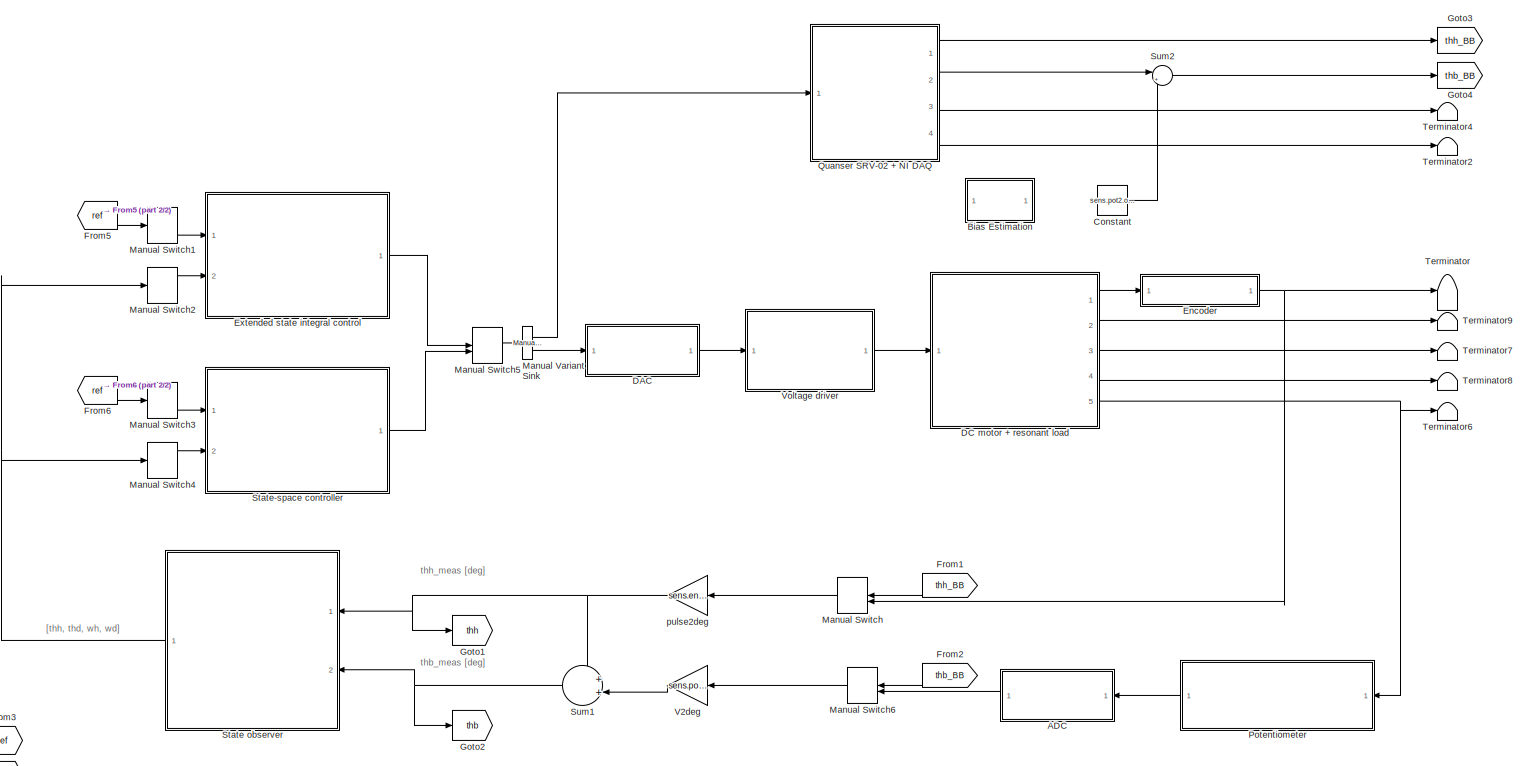
[diagram: root canvas - part 1/2, most of the canvas]
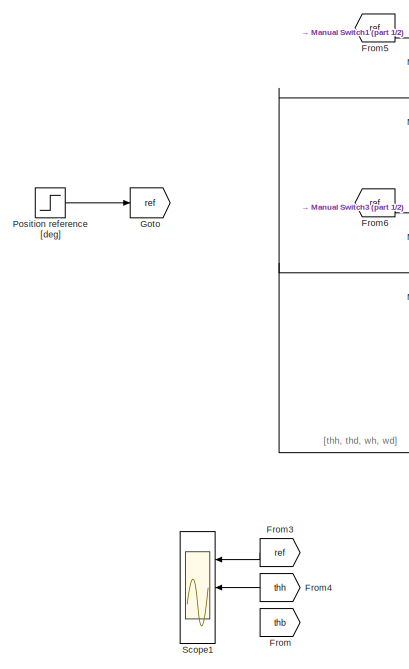
[diagram: root canvas - part 2/2, left side, full height]
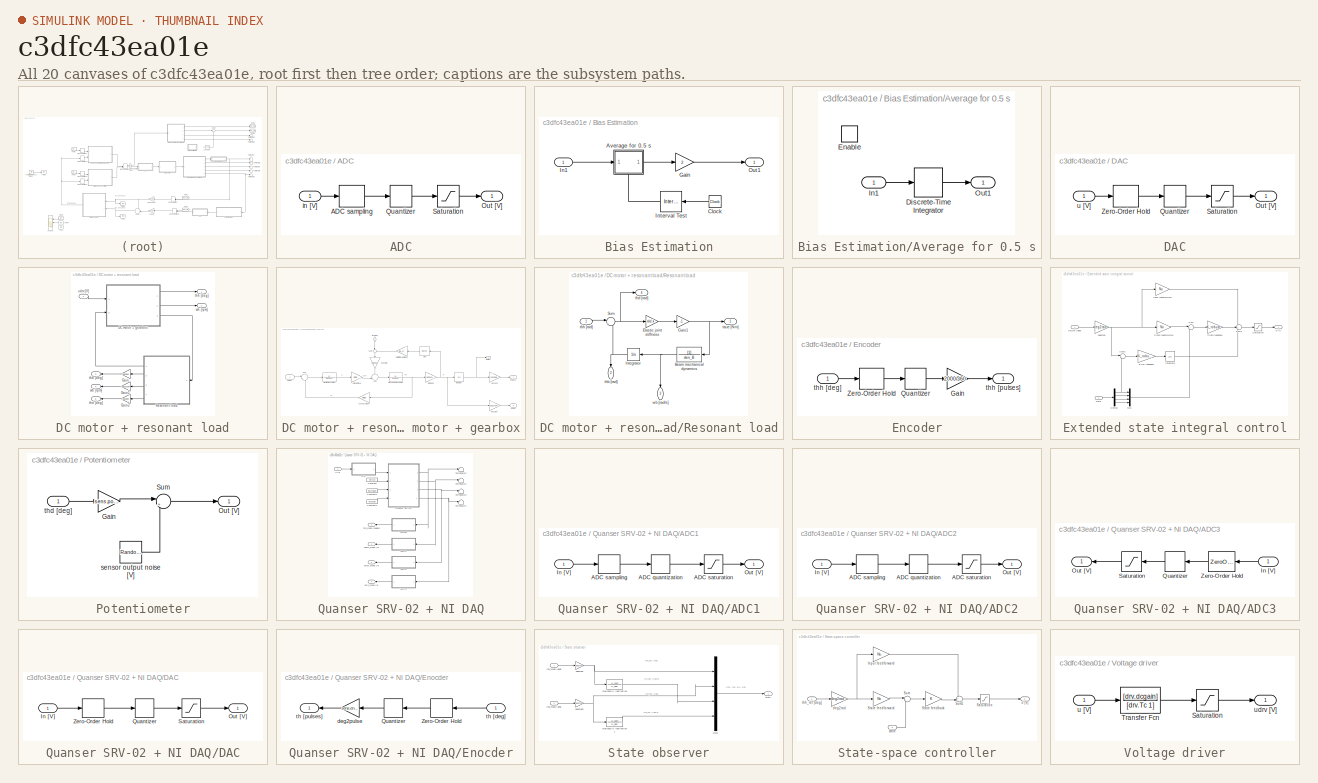
[diagram: thumbnail index - all 20 canvases of the model, root first then tree order]
MODEL slx_c3dfc43ea01e
KIND model
CONFIG AbsTol = auto
CONFIG EnableMultiTasking = off
CONFIG FixedStep = 0.0001
CONFIG MaxStep = auto
CONFIG MinStep = auto
CONFIG RelTol = 1e-3
CONFIG SampleTimeConstraint = Unconstrained
CONFIG SolverName = ode45
CONFIG StartTime = 0.0
CONFIG StopTime = 5
BLOCK [SubSystem] ADC
  Ports = [1, 1]
  RequestExecContextInheritance = off
BLOCK [ZeroOrderHold] ADC/ADC sampling
  SampleTime = Ts
BLOCK [Outport] ADC/Out [V]
BLOCK [Quantizer] ADC/Quantizer
  QuantizationInterval = daq.adc.q
BLOCK [Saturate] ADC/Saturation
  LowerLimit = -daq.adc.fs
  UpperLimit = daq.adc.fs
BLOCK [Inport] ADC/in [V]
BLOCK [SubSystem] Bias Estimation
  Commented = on
  NameLocation = top
  Ports = [1, 1]
  RequestExecContextInheritance = off
BLOCK [SubSystem] Bias Estimation/Average for 0.5 s
  NameLocation = top
  Ports = [1, 1, 1]
  RequestExecContextInheritance = off
BLOCK [DiscreteIntegrator] Bias Estimation/Average for 0.5 s/Discrete-Time Integrator
  ICPrevOutput = DiscIntNeverNeededParam
  ICPrevScaledInput = DiscIntNeverNeededParam
  InitialConditionSetting = Auto
  Ports = [1, 1]
  SampleTime = Ts
BLOCK [EnablePort] Bias Estimation/Average for 0.5 s/Enable
  Ports = []
BLOCK [Inport] Bias Estimation/Average for 0.5 s/In1
BLOCK [Outport] Bias Estimation/Average for 0.5 s/Out1
BLOCK [Clock] Bias Estimation/Clock
  NameLocation = top
BLOCK [Gain] Bias Estimation/Gain
  Gain = 2
BLOCK [Inport] Bias Estimation/In1
BLOCK [Reference] Bias Estimation/Interval Test  REF=simulink/Logic and Bit
Operations/Interval Test
  NameLocation = top
  Ports = [1, 1]
  SourceBlock = simulink/Logic and Bit\nOperations/Interval Test
  SourceProductBaseCode = SL
  SourceType = Interval Test
BLOCK [Outport] Bias Estimation/Out1
BLOCK [Constant] Constant
  Value = sens.pot2.offset
BLOCK [SubSystem] DAC
  Ports = [1, 1]
  RequestExecContextInheritance = off
BLOCK [Outport] DAC/Out [V]
BLOCK [Quantizer] DAC/Quantizer
  QuantizationInterval = 20/(2^16-1)
BLOCK [Saturate] DAC/Saturation
  LowerLimit = -10
  UpperLimit = 10
BLOCK [ZeroOrderHold] DAC/Zero-Order Hold
  SampleTime = Ts
BLOCK [Inport] DAC/u [V]
BLOCK [SubSystem] DC motor + resonant load
  Ports = [1, 5]
  RequestExecContextInheritance = off
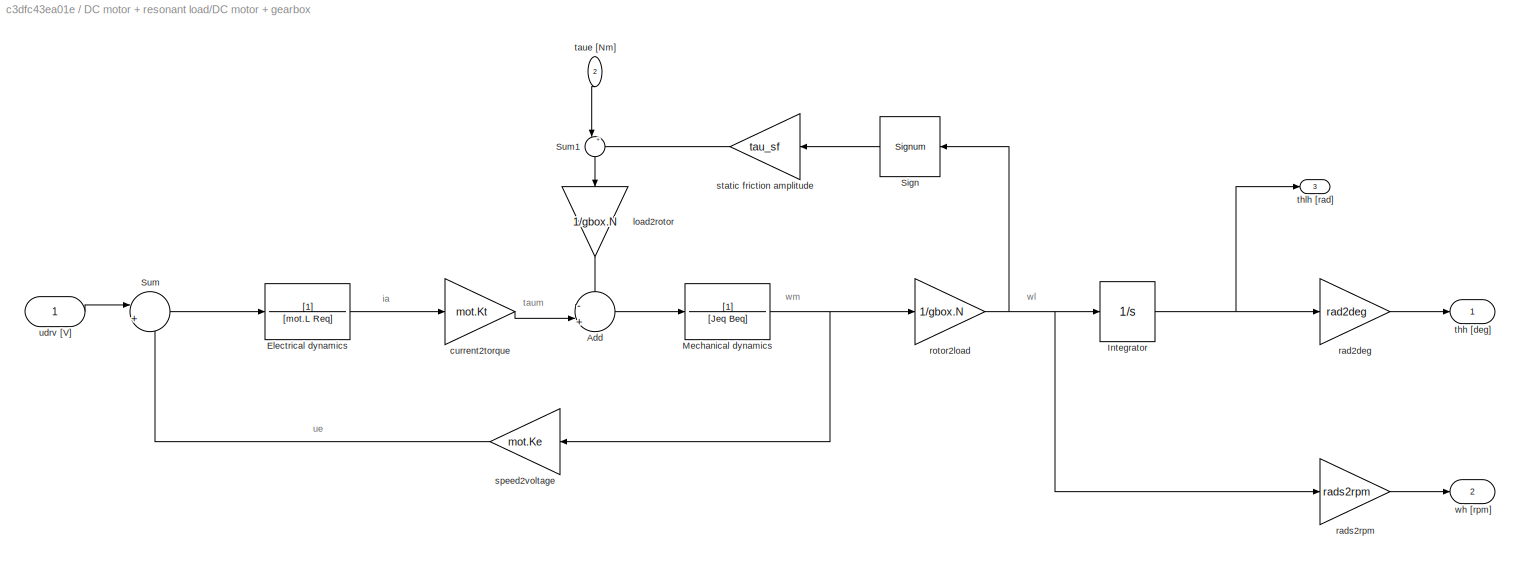
BLOCK [SubSystem] DC motor + resonant load/DC motor + gearbox
  Ports = [2, 3]
  RequestExecContextInheritance = off
BLOCK [Sum] DC motor + resonant load/DC motor + gearbox/Add
  Inputs = -|+||
  Ports = [2, 1]
BLOCK [TransferFcn] DC motor + resonant load/DC motor + gearbox/Electrical dynamics
  Denominator = [mot.L Req]
BLOCK [Integrator] DC motor + resonant load/DC motor + gearbox/Integrator
  Ports = [1, 1]
BLOCK [TransferFcn] DC motor + resonant load/DC motor + gearbox/Mechanical dynamics
  Denominator = [Jeq Beq]
BLOCK [Signum] DC motor + resonant load/DC motor + gearbox/Sign
  ZeroCross = off
BLOCK [Sum] DC motor + resonant load/DC motor + gearbox/Sum
  Inputs = |+-
  Ports = [2, 1]
BLOCK [Sum] DC motor + resonant load/DC motor + gearbox/Sum1
  Inputs = |++
  NameLocation = left
  Ports = [2, 1]
BLOCK [Gain] DC motor + resonant load/DC motor + gearbox/current2torque
  Gain = mot.Kt
BLOCK [Gain] DC motor + resonant load/DC motor + gearbox/load2rotor
  Gain = 1/gbox.N
  NameLocation = left
BLOCK [Gain] DC motor + resonant load/DC motor + gearbox/rad2deg
  Gain = rad2deg
BLOCK [Gain] DC motor + resonant load/DC motor + gearbox/rads2rpm
  Gain = rads2rpm
BLOCK [Gain] DC motor + resonant load/DC motor + gearbox/rotor2load
  Gain = 1/gbox.N
BLOCK [Gain] DC motor + resonant load/DC motor + gearbox/speed2voltage
  Gain = mot.Ke
BLOCK [Gain] DC motor + resonant load/DC motor + gearbox/static friction amplitude
  Gain = tau_sf
  NameLocation = top
BLOCK [Inport] DC motor + resonant load/DC motor + gearbox/taue [Nm]
  NameLocation = left
  Port = 2
BLOCK [Outport] DC motor + resonant load/DC motor + gearbox/thh [deg] 
BLOCK [Outport] DC motor + resonant load/DC motor + gearbox/thlh [rad]
  NameLocation = top
  Port = 3
BLOCK [Inport] DC motor + resonant load/DC motor + gearbox/udrv [V]
BLOCK [Outport] DC motor + resonant load/DC motor + gearbox/wh [rpm]
  Port = 2
BLOCK [Gain] DC motor + resonant load/Gain
  Gain = rad2deg
BLOCK [Gain] DC motor + resonant load/Gain1
  Gain = rads2rpm
BLOCK [Gain] DC motor + resonant load/Gain2
  Gain = rad2deg
BLOCK [SubSystem] DC motor + resonant load/Resonant load
  Ports = [1, 4]
  RequestExecContextInheritance = off
BLOCK [TransferFcn] DC motor + resonant load/Resonant load/Beam mechanical dynamics
  Denominator = den_B
BLOCK [Gain] DC motor + resonant load/Resonant load/Elastic joint stiffness
  Gain = mld.k
BLOCK [Gain] DC motor + resonant load/Resonant load/Gain1
  Gain = -1
BLOCK [Integrator] DC motor + resonant load/Resonant load/Integrator
  Ports = [1, 1]
BLOCK [Sum] DC motor + resonant load/Resonant load/Sum
  Inputs = |-+
  Ports = [2, 1]
BLOCK [Outport] DC motor + resonant load/Resonant load/taue [Nm]
BLOCK [Outport] DC motor + resonant load/Resonant load/thb [rad]
  NameLocation = left
  Port = 2
BLOCK [Outport] DC motor + resonant load/Resonant load/thd [rad]
  Port = 4
BLOCK [Inport] DC motor + resonant load/Resonant load/thh [rad]
BLOCK [Outport] DC motor + resonant load/Resonant load/wb [rad//s]
  NameLocation = left
  Port = 3
BLOCK [Outport] DC motor + resonant load/thb [deg]
  Port = 3
BLOCK [Outport] DC motor + resonant load/thd [deg]
  Port = 5
BLOCK [Outport] DC motor + resonant load/thh [deg] 
BLOCK [Inport] DC motor + resonant load/udrv [V]
BLOCK [Outport] DC motor + resonant load/wb [rpm]
  Port = 4
BLOCK [Outport] DC motor + resonant load/wh [rpm]
  Port = 2
BLOCK [SubSystem] Encoder
  Ports = [1, 1]
  RequestExecContextInheritance = off
BLOCK [Gain] Encoder/Gain
  Gain = 2000/360
BLOCK [Quantizer] Encoder/Quantizer
  QuantizationInterval = 360/(500*4)
BLOCK [ZeroOrderHold] Encoder/Zero-Order Hold
  SampleTime = Ts
BLOCK [Inport] Encoder/thh [deg] 
BLOCK [Outport] Encoder/thh [pulses]
BLOCK [SubSystem] Extended state integral control
  Ports = [2, 1]
  RequestExecContextInheritance = off
BLOCK [Demux] Extended state integral control/Demux
  Ports = [1, 4]
BLOCK [Gain] Extended state integral control/Error feedback
  Gain = Ki_robust
BLOCK [Gain] Extended state integral control/Input feedforward
  Gain = Nu
BLOCK [Integrator] Extended state integral control/Integrator
  Ports = [1, 1]
BLOCK [Mux] Extended state integral control/Mux
  DisplayOption = bar
  Ports = [4, 1]
BLOCK [Saturate] Extended state integral control/Saturation
  LowerLimit = -12
  UpperLimit = 12
BLOCK [Gain] Extended state integral control/State feedback
  Gain = K_robust
  Multiplication = Matrix(K*u) (u vector)
BLOCK [Gain] Extended state integral control/State feedforward
  Gain = Nx
BLOCK [Sum] Extended state integral control/Sum
  Inputs = |+-
  Ports = [2, 1]
BLOCK [Sum] Extended state integral control/Sum1
  Inputs = +++
  Ports = [3, 1]
BLOCK [Sum] Extended state integral control/Sum2
  Inputs = |+-
  Ports = [2, 1]
BLOCK [Gain] Extended state integral control/deg2rad
  Gain = deg2rad
BLOCK [Inport] Extended state integral control/state
  Port = 2
BLOCK [Inport] Extended state integral control/thh_ref [deg]
BLOCK [Outport] Extended state integral control/u [V]
BLOCK [From] From
  Commented = on
  GotoTag = thb
BLOCK [From] From1
  GotoTag = thh_BB
BLOCK [From] From2
  GotoTag = thb_BB
BLOCK [From] From3
  GotoTag = ref
BLOCK [From] From4
  GotoTag = thh
BLOCK [From] From5
  GotoTag = ref
BLOCK [From] From6
  GotoTag = ref
BLOCK [Goto] Goto
  GotoTag = ref
BLOCK [Goto] Goto1
  GotoTag = thh
BLOCK [Goto] Goto2
  Commented = on
  GotoTag = thb
BLOCK [Goto] Goto3
  GotoTag = thh_BB
BLOCK [Goto] Goto4
  GotoTag = thb_BB
BLOCK [ManualSwitch] Manual Switch
  NameLocation = top
BLOCK [ManualSwitch] Manual Switch1
  NameLocation = top
BLOCK [ManualSwitch] Manual Switch2
  NameLocation = top
BLOCK [ManualSwitch] Manual Switch3
  CurrentSetting = 0
  NameLocation = top
BLOCK [ManualSwitch] Manual Switch4
  CurrentSetting = 0
  NameLocation = top
BLOCK [ManualSwitch] Manual Switch5
  NameLocation = top
BLOCK [ManualSwitch] Manual Switch6
  NameLocation = top
BLOCK [Reference] Manual Variant Sink  REF=simulink/Signal
Routing/Manual
Variant Sink
  Ports = [1, 2]
  SourceBlock = simulink/Signal\nRouting/Manual\nVariant Sink
  SourceProductBaseCode = SL
  SourceType = ManualVariantSink
BLOCK [Step] Position reference [deg]
  After = 50
  SampleTime = 0
BLOCK [SubSystem] Potentiometer
  Ports = [1, 1]
  RequestExecContextInheritance = off
BLOCK [Gain] Potentiometer/Gain
  Gain = sens.pot2.deg2V
BLOCK [Outport] Potentiometer/Out [V]
BLOCK [Sum] Potentiometer/Sum
  Inputs = |++
  Ports = [2, 1]
BLOCK [RandomNumber] Potentiometer/sensor output noise [V]
  SampleTime = Ts
  Variance = sens.pot2.noise.var
BLOCK [Inport] Potentiometer/thd [deg]
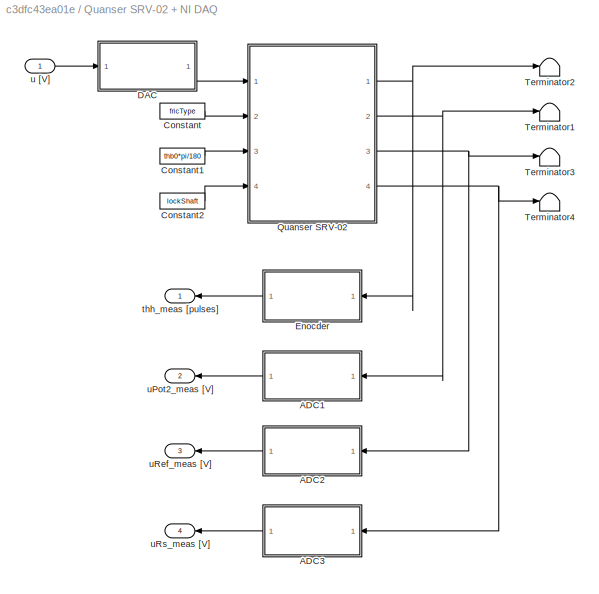
BLOCK [SubSystem] Quanser SRV-02 + NI DAQ
  Ports = [1, 4]
  RequestExecContextInheritance = off
BLOCK [SubSystem] Quanser SRV-02 + NI DAQ/ADC1
  Ports = [1, 1]
  RequestExecContextInheritance = off
BLOCK [Quantizer] Quanser SRV-02 + NI DAQ/ADC1/ADC quantization
  QuantizationInterval = daq.adc.q
BLOCK [ZeroOrderHold] Quanser SRV-02 + NI DAQ/ADC1/ADC sampling
  SampleTime = Ts
BLOCK [Saturate] Quanser SRV-02 + NI DAQ/ADC1/ADC saturation
  LowerLimit = -daq.adc.fs
  UpperLimit = daq.adc.fs
BLOCK [Inport] Quanser SRV-02 + NI DAQ/ADC1/In [V]
BLOCK [Outport] Quanser SRV-02 + NI DAQ/ADC1/Out [V]
BLOCK [SubSystem] Quanser SRV-02 + NI DAQ/ADC2
  Ports = [1, 1]
  RequestExecContextInheritance = off
BLOCK [Quantizer] Quanser SRV-02 + NI DAQ/ADC2/ADC quantization
  QuantizationInterval = daq.adc.q
BLOCK [ZeroOrderHold] Quanser SRV-02 + NI DAQ/ADC2/ADC sampling
  SampleTime = Ts
BLOCK [Saturate] Quanser SRV-02 + NI DAQ/ADC2/ADC saturation
  LowerLimit = -daq.adc.fs
  UpperLimit = daq.adc.fs
BLOCK [Inport] Quanser SRV-02 + NI DAQ/ADC2/In [V]
BLOCK [Outport] Quanser SRV-02 + NI DAQ/ADC2/Out [V]
BLOCK [SubSystem] Quanser SRV-02 + NI DAQ/ADC3
  Ports = [1, 1]
  RequestExecContextInheritance = off
BLOCK [Inport] Quanser SRV-02 + NI DAQ/ADC3/In [V]
BLOCK [Outport] Quanser SRV-02 + NI DAQ/ADC3/Out [V]
BLOCK [Quantizer] Quanser SRV-02 + NI DAQ/ADC3/Quantizer
  QuantizationInterval = daq.adc.q
BLOCK [Saturate] Quanser SRV-02 + NI DAQ/ADC3/Saturation
  LowerLimit = -daq.adc.fs
  UpperLimit = daq.adc.fs
BLOCK [ZeroOrderHold] Quanser SRV-02 + NI DAQ/ADC3/Zero-Order Hold
  SampleTime = Ts
BLOCK [Constant] Quanser SRV-02 + NI DAQ/Constant
  Value = fricType
BLOCK [Constant] Quanser SRV-02 + NI DAQ/Constant1
  SampleTime = Inf
  Value = thb0*pi/180
BLOCK [Constant] Quanser SRV-02 + NI DAQ/Constant2
  SampleTime = Inf
  Value = lockShaft
BLOCK [SubSystem] Quanser SRV-02 + NI DAQ/DAC
  Ports = [1, 1]
  RequestExecContextInheritance = off
BLOCK [Inport] Quanser SRV-02 + NI DAQ/DAC/In [V]
BLOCK [Outport] Quanser SRV-02 + NI DAQ/DAC/Out [V]
BLOCK [Quantizer] Quanser SRV-02 + NI DAQ/DAC/Quantizer
  QuantizationInterval = daq.dac.q
BLOCK [Saturate] Quanser SRV-02 + NI DAQ/DAC/Saturation
  LowerLimit = -daq.dac.fs
  UpperLimit = daq.dac.fs
BLOCK [ZeroOrderHold] Quanser SRV-02 + NI DAQ/DAC/Zero-Order Hold
  SampleTime = Ts
BLOCK [SubSystem] Quanser SRV-02 + NI DAQ/Enocder
  Ports = [1, 1]
  RequestExecContextInheritance = off
BLOCK [Quantizer] Quanser SRV-02 + NI DAQ/Enocder/Quantizer
  QuantizationInterval = sens.enc.pulse2deg
BLOCK [ZeroOrderHold] Quanser SRV-02 + NI DAQ/Enocder/Zero-Order Hold
  SampleTime = Ts
BLOCK [Gain] Quanser SRV-02 + NI DAQ/Enocder/deg2pulse
  Gain = sens.enc.deg2pulse
BLOCK [Inport] Quanser SRV-02 + NI DAQ/Enocder/th [deg]
BLOCK [Outport] Quanser SRV-02 + NI DAQ/Enocder/th [pulses]
BLOCK [ModelReference] Quanser SRV-02 + NI DAQ/Quanser SRV-02
  CopyOfModelProtected = on
  ModelNameDialog = SRV02RL_win64.slxp
  ModelReferenceVersion = 1.76
  Ports = [4, 4]
BLOCK [Terminator] Quanser SRV-02 + NI DAQ/Terminator1
BLOCK [Terminator] Quanser SRV-02 + NI DAQ/Terminator2
BLOCK [Terminator] Quanser SRV-02 + NI DAQ/Terminator3
BLOCK [Terminator] Quanser SRV-02 + NI DAQ/Terminator4
BLOCK [Outport] Quanser SRV-02 + NI DAQ/thh_meas [pulses]
BLOCK [Inport] Quanser SRV-02 + NI DAQ/u [V]
BLOCK [Outport] Quanser SRV-02 + NI DAQ/uPot2_meas [V]
  Port = 2
BLOCK [Outport] Quanser SRV-02 + NI DAQ/uRef_meas [V]
  Port = 3
BLOCK [Outport] Quanser SRV-02 + NI DAQ/uRs_meas [V]
  Port = 4
BLOCK [Scope] Scope1
  Floating = off
  NumInputPorts = 3
  Ports = [3]
  ScopeSpecificationString = Simulink.scopes.TimeScopeBlockCfg('CurrentConfiguration', extmgr.ConfigurationSet(extmgr.Configuration('Core','General UI',true),extmgr.Configuration('Core','Source UI',true),extmgr.Configuration('Sources','WiredSimulink',true,'DataLogging',true,'DataLoggingSaveFormat','StructureWithTime','DataLoggingVariableName','ScopeData1'),extmgr.Configuration('Visuals','Time Domain',true,'SerializedDisplays'...<+1559ch>
BLOCK [SubSystem] State observer
  Ports = [2, 1]
  RequestExecContextInheritance = off
BLOCK [Mux] State observer/Mux1
  DisplayOption = bar
  Ports = [4, 1]
BLOCK [Gain] State observer/deg2rad
  Gain = deg2rad
BLOCK [Gain] State observer/deg2rad1
  Gain = deg2rad
BLOCK [TransferFcn] State observer/high-pass H (derivative)
  Denominator = H_den
  Numerator = H_num
BLOCK [TransferFcn] State observer/high-pass H (derivative)1
  Denominator = H_den
  Numerator = H_num
BLOCK [Outport] State observer/state
BLOCK [Inport] State observer/thd_meas [deg]
  Port = 2
BLOCK [Inport] State observer/thh_meas [deg]
BLOCK [SubSystem] State-space controller
  Ports = [2, 1]
  RequestExecContextInheritance = off
BLOCK [Gain] State-space controller/Input feedforward
  Gain = Nu
BLOCK [Saturate] State-space controller/Saturation
  LowerLimit = -12
  UpperLimit = 12
BLOCK [Gain] State-space controller/State feedback
  Gain = K
  Multiplication = Matrix(K*u) (u vector)
BLOCK [Gain] State-space controller/State feedforward
  Gain = Nx
BLOCK [Sum] State-space controller/Sum
  Inputs = |+-
  Ports = [2, 1]
BLOCK [Sum] State-space controller/Sum1
  Inputs = ++|
  Ports = [2, 1]
BLOCK [Gain] State-space controller/deg2rad
  Gain = deg2rad
BLOCK [Inport] State-space controller/state
  Port = 2
BLOCK [Inport] State-space controller/thh_ref [deg]
BLOCK [Outport] State-space controller/u [V]
BLOCK [Sum] Sum1
  Inputs = ++|
  NameLocation = top
  Ports = [2, 1]
BLOCK [Sum] Sum2
  Inputs = |+-
  Ports = [2, 1]
BLOCK [Terminator] Terminator
BLOCK [Terminator] Terminator2
BLOCK [Terminator] Terminator4
BLOCK [Terminator] Terminator6
BLOCK [Terminator] Terminator7
BLOCK [Terminator] Terminator8
BLOCK [Terminator] Terminator9
BLOCK [Gain] V2deg
  Gain = sens.pot2.V2deg
BLOCK [SubSystem] Voltage driver
  Ports = [1, 1]
  RequestExecContextInheritance = off
BLOCK [Saturate] Voltage driver/Saturation
  LowerLimit = -10
  UpperLimit = 10
BLOCK [TransferFcn] Voltage driver/Transfer Fcn
  Denominator = [drv.Tc 1]
  Numerator = [drv.dcgain]
BLOCK [Inport] Voltage driver/u [V]
BLOCK [Outport] Voltage driver/udrv [V]
BLOCK [Gain] pulse2deg
  Gain = sens.enc.pulse2deg
ANNOTATION (root): [thh, thd, wh, wd]
ANNOTATION (root): thb_meas [deg]
ANNOTATION (root): thh_meas [deg]
ANNOTATION DC motor + resonant load/DC motor + gearbox: ia
ANNOTATION DC motor + resonant load/DC motor + gearbox: taum
ANNOTATION DC motor + resonant load/DC motor + gearbox: ue
ANNOTATION DC motor + resonant load/DC motor + gearbox: wl
ANNOTATION DC motor + resonant load/DC motor + gearbox: wm
ANNOTATION State observer: [thh, thd, wh, wd]
ANNOTATION State observer: thd_est [rad]
ANNOTATION State observer: thh_est [rad]
ANNOTATION State observer: wd_est [rad/s]
ANNOTATION State observer: wh_est [rad/s]
LINE ADC/ADC sampling:1 -> ADC/Quantizer:1
LINE ADC/Quantizer:1 -> ADC/Saturation:1
LINE ADC/Saturation:1 -> ADC/Out [V]:1
LINE ADC/in [V]:1 -> ADC/ADC sampling:1
LINE ADC:1 -> Manual Switch6:2
LINE Bias Estimation/Average for 0.5 s/Discrete-Time Integrator:1 -> Bias Estimation/Average for 0.5 s/Out1:1
LINE Bias Estimation/Average for 0.5 s/In1:1 -> Bias Estimation/Average for 0.5 s/Discrete-Time Integrator:1
LINE Bias Estimation/Average for 0.5 s:1 -> Bias Estimation/Gain:1
LINE Bias Estimation/Clock:1 -> Bias Estimation/Interval Test:1
LINE Bias Estimation/Gain:1 -> Bias Estimation/Out1:1
LINE Bias Estimation/In1:1 -> Bias Estimation/Average for 0.5 s:1
LINE Bias Estimation/Interval Test:1 -> Bias Estimation/Average for 0.5 s:enable
LINE Constant:1 -> Sum2:2
LINE DAC/Quantizer:1 -> DAC/Saturation:1
LINE DAC/Saturation:1 -> DAC/Out [V]:1
LINE DAC/Zero-Order Hold:1 -> DAC/Quantizer:1
LINE DAC/u [V]:1 -> DAC/Zero-Order Hold:1
LINE DAC:1 -> Voltage driver:1
LINE DC motor + resonant load/DC motor + gearbox/Add:1 -> DC motor + resonant load/DC motor + gearbox/Mechanical dynamics:1
LINE DC motor + resonant load/DC motor + gearbox/Electrical dynamics:1 -> DC motor + resonant load/DC motor + gearbox/current2torque:1
NET DC motor + resonant load/DC motor + gearbox/Integrator:1 -> DC motor + resonant load/DC motor + gearbox/rad2deg:1, DC motor + resonant load/DC motor + gearbox/thlh [rad]:1
NET DC motor + resonant load/DC motor + gearbox/Mechanical dynamics:1 -> DC motor + resonant load/DC motor + gearbox/rotor2load:1, DC motor + resonant load/DC motor + gearbox/speed2voltage:1
LINE DC motor + resonant load/DC motor + gearbox/Sign:1 -> DC motor + resonant load/DC motor + gearbox/static friction amplitude:1
LINE DC motor + resonant load/DC motor + gearbox/Sum1:1 -> DC motor + resonant load/DC motor + gearbox/load2rotor:1
LINE DC motor + resonant load/DC motor + gearbox/Sum:1 -> DC motor + resonant load/DC motor + gearbox/Electrical dynamics:1
LINE DC motor + resonant load/DC motor + gearbox/current2torque:1 -> DC motor + resonant load/DC motor + gearbox/Add:2
LINE DC motor + resonant load/DC motor + gearbox/load2rotor:1 -> DC motor + resonant load/DC motor + gearbox/Add:1
LINE DC motor + resonant load/DC motor + gearbox/rad2deg:1 -> DC motor + resonant load/DC motor + gearbox/thh [deg] :1
LINE DC motor + resonant load/DC motor + gearbox/rads2rpm:1 -> DC motor + resonant load/DC motor + gearbox/wh [rpm]:1
NET DC motor + resonant load/DC motor + gearbox/rotor2load:1 -> DC motor + resonant load/DC motor + gearbox/Integrator:1, DC motor + resonant load/DC motor + gearbox/Sign:1, DC motor + resonant load/DC motor + gearbox/rads2rpm:1
LINE DC motor + resonant load/DC motor + gearbox/speed2voltage:1 -> DC motor + resonant load/DC motor + gearbox/Sum:2
LINE DC motor + resonant load/DC motor + gearbox/static friction amplitude:1 -> DC motor + resonant load/DC motor + gearbox/Sum1:2
LINE DC motor + resonant load/DC motor + gearbox/taue [Nm]:1 -> DC motor + resonant load/DC motor + gearbox/Sum1:1
LINE DC motor + resonant load/DC motor + gearbox/udrv [V]:1 -> DC motor + resonant load/DC motor + gearbox/Sum:1
LINE DC motor + resonant load/DC motor + gearbox:1 -> DC motor + resonant load/thh [deg] :1
LINE DC motor + resonant load/DC motor + gearbox:2 -> DC motor + resonant load/wh [rpm]:1
LINE DC motor + resonant load/DC motor + gearbox:3 -> DC motor + resonant load/Resonant load:1
LINE DC motor + resonant load/Gain1:1 -> DC motor + resonant load/wb [rpm]:1
LINE DC motor + resonant load/Gain2:1 -> DC motor + resonant load/thd [deg]:1
LINE DC motor + resonant load/Gain:1 -> DC motor + resonant load/thb [deg]:1
NET DC motor + resonant load/Resonant load/Beam mechanical dynamics:1 -> DC motor + resonant load/Resonant load/Integrator:1, DC motor + resonant load/Resonant load/wb [rad//s]:1
LINE DC motor + resonant load/Resonant load/Elastic joint stiffness:1 -> DC motor + resonant load/Resonant load/Gain1:1
NET DC motor + resonant load/Resonant load/Gain1:1 -> DC motor + resonant load/Resonant load/Beam mechanical dynamics:1, DC motor + resonant load/Resonant load/taue [Nm]:1
NET DC motor + resonant load/Resonant load/Integrator:1 -> DC motor + resonant load/Resonant load/Sum:2, DC motor + resonant load/Resonant load/thb [rad]:1
NET DC motor + resonant load/Resonant load/Sum:1 -> DC motor + resonant load/Resonant load/Elastic joint stiffness:1, DC motor + resonant load/Resonant load/thd [rad]:1
LINE DC motor + resonant load/Resonant load/thh [rad]:1 -> DC motor + resonant load/Resonant load/Sum:1
LINE DC motor + resonant load/Resonant load:1 -> DC motor + resonant load/DC motor + gearbox:2
LINE DC motor + resonant load/Resonant load:2 -> DC motor + resonant load/Gain:1
LINE DC motor + resonant load/Resonant load:3 -> DC motor + resonant load/Gain1:1
LINE DC motor + resonant load/Resonant load:4 -> DC motor + resonant load/Gain2:1
LINE DC motor + resonant load/udrv [V]:1 -> DC motor + resonant load/DC motor + gearbox:1
LINE DC motor + resonant load:1 -> Encoder:1
LINE DC motor + resonant load:2 -> Terminator9:1
LINE DC motor + resonant load:3 -> Terminator7:1
LINE DC motor + resonant load:4 -> Terminator8:1
NET DC motor + resonant load:5 -> Potentiometer:1, Terminator6:1
LINE Encoder/Gain:1 -> Encoder/thh [pulses]:1
LINE Encoder/Quantizer:1 -> Encoder/Gain:1
LINE Encoder/Zero-Order Hold:1 -> Encoder/Quantizer:1
LINE Encoder/thh [deg] :1 -> Encoder/Zero-Order Hold:1
NET Encoder:1 -> Manual Switch:2, Terminator:1
NET Extended state integral control/Demux:1 -> Extended state integral control/Mux:1, Extended state integral control/Sum2:2
LINE Extended state integral control/Demux:2 -> Extended state integral control/Mux:2
LINE Extended state integral control/Demux:3 -> Extended state integral control/Mux:3
LINE Extended state integral control/Demux:4 -> Extended state integral control/Mux:4
LINE Extended state integral control/Error feedback:1 -> Extended state integral control/Integrator:1
LINE Extended state integral control/Input feedforward:1 -> Extended state integral control/Sum1:1
LINE Extended state integral control/Integrator:1 -> Extended state integral control/Sum1:3
LINE Extended state integral control/Mux:1 -> Extended state integral control/Sum:2
LINE Extended state integral control/Saturation:1 -> Extended state integral control/u [V]:1
LINE Extended state integral control/State feedback:1 -> Extended state integral control/Sum1:2
LINE Extended state integral control/State feedforward:1 -> Extended state integral control/Sum:1
LINE Extended state integral control/Sum1:1 -> Extended state integral control/Saturation:1
LINE Extended state integral control/Sum2:1 -> Extended state integral control/Error feedback:1
LINE Extended state integral control/Sum:1 -> Extended state integral control/State feedback:1
NET Extended state integral control/deg2rad:1 -> Extended state integral control/Input feedforward:1, Extended state integral control/State feedforward:1, Extended state integral control/Sum2:1
LINE Extended state integral control/state:1 -> Extended state integral control/Demux:1
LINE Extended state integral control/thh_ref [deg]:1 -> Extended state integral control/deg2rad:1
LINE Extended state integral control:1 -> Manual Switch5:1
LINE From1:1 -> Manual Switch:1
LINE From2:1 -> Manual Switch6:1
LINE From3:1 -> Scope1:1
LINE From4:1 -> Scope1:2
LINE From5:1 -> Manual Switch1:1
LINE From6:1 -> Manual Switch3:1
LINE Manual Switch1:1 -> Extended state integral control:1
LINE Manual Switch2:1 -> Extended state integral control:2
LINE Manual Switch3:1 -> State-space controller:1
LINE Manual Switch4:1 -> State-space controller:2
LINE Manual Switch5:1 -> Manual Variant Sink:1
LINE Manual Switch6:1 -> V2deg:1
LINE Manual Switch:1 -> pulse2deg:1
LINE Manual Variant Sink:1 -> Quanser SRV-02 + NI DAQ:1
LINE Manual Variant Sink:2 -> DAC:1
LINE Position reference [deg]:1 -> Goto:1
LINE Potentiometer/Gain:1 -> Potentiometer/Sum:1
LINE Potentiometer/Sum:1 -> Potentiometer/Out [V]:1
LINE Potentiometer/sensor output noise [V]:1 -> Potentiometer/Sum:2
LINE Potentiometer/thd [deg]:1 -> Potentiometer/Gain:1
LINE Potentiometer:1 -> ADC:1
LINE Quanser SRV-02 + NI DAQ/ADC1/ADC quantization:1 -> Quanser SRV-02 + NI DAQ/ADC1/ADC saturation:1
LINE Quanser SRV-02 + NI DAQ/ADC1/ADC sampling:1 -> Quanser SRV-02 + NI DAQ/ADC1/ADC quantization:1
LINE Quanser SRV-02 + NI DAQ/ADC1/ADC saturation:1 -> Quanser SRV-02 + NI DAQ/ADC1/Out [V]:1
LINE Quanser SRV-02 + NI DAQ/ADC1/In [V]:1 -> Quanser SRV-02 + NI DAQ/ADC1/ADC sampling:1
LINE Quanser SRV-02 + NI DAQ/ADC1:1 -> Quanser SRV-02 + NI DAQ/uPot2_meas [V]:1
LINE Quanser SRV-02 + NI DAQ/ADC2/ADC quantization:1 -> Quanser SRV-02 + NI DAQ/ADC2/ADC saturation:1
LINE Quanser SRV-02 + NI DAQ/ADC2/ADC sampling:1 -> Quanser SRV-02 + NI DAQ/ADC2/ADC quantization:1
LINE Quanser SRV-02 + NI DAQ/ADC2/ADC saturation:1 -> Quanser SRV-02 + NI DAQ/ADC2/Out [V]:1
LINE Quanser SRV-02 + NI DAQ/ADC2/In [V]:1 -> Quanser SRV-02 + NI DAQ/ADC2/ADC sampling:1
LINE Quanser SRV-02 + NI DAQ/ADC2:1 -> Quanser SRV-02 + NI DAQ/uRef_meas [V]:1
LINE Quanser SRV-02 + NI DAQ/ADC3/In [V]:1 -> Quanser SRV-02 + NI DAQ/ADC3/Zero-Order Hold:1
LINE Quanser SRV-02 + NI DAQ/ADC3/Quantizer:1 -> Quanser SRV-02 + NI DAQ/ADC3/Saturation:1
LINE Quanser SRV-02 + NI DAQ/ADC3/Saturation:1 -> Quanser SRV-02 + NI DAQ/ADC3/Out [V]:1
LINE Quanser SRV-02 + NI DAQ/ADC3/Zero-Order Hold:1 -> Quanser SRV-02 + NI DAQ/ADC3/Quantizer:1
LINE Quanser SRV-02 + NI DAQ/ADC3:1 -> Quanser SRV-02 + NI DAQ/uRs_meas [V]:1
LINE Quanser SRV-02 + NI DAQ/Constant1:1 -> Quanser SRV-02 + NI DAQ/Quanser SRV-02:3
LINE Quanser SRV-02 + NI DAQ/Constant2:1 -> Quanser SRV-02 + NI DAQ/Quanser SRV-02:4
LINE Quanser SRV-02 + NI DAQ/Constant:1 -> Quanser SRV-02 + NI DAQ/Quanser SRV-02:2
LINE Quanser SRV-02 + NI DAQ/DAC/In [V]:1 -> Quanser SRV-02 + NI DAQ/DAC/Zero-Order Hold:1
LINE Quanser SRV-02 + NI DAQ/DAC/Quantizer:1 -> Quanser SRV-02 + NI DAQ/DAC/Saturation:1
LINE Quanser SRV-02 + NI DAQ/DAC/Saturation:1 -> Quanser SRV-02 + NI DAQ/DAC/Out [V]:1
LINE Quanser SRV-02 + NI DAQ/DAC/Zero-Order Hold:1 -> Quanser SRV-02 + NI DAQ/DAC/Quantizer:1
LINE Quanser SRV-02 + NI DAQ/DAC:1 -> Quanser SRV-02 + NI DAQ/Quanser SRV-02:1
LINE Quanser SRV-02 + NI DAQ/Enocder/Quantizer:1 -> Quanser SRV-02 + NI DAQ/Enocder/deg2pulse:1
LINE Quanser SRV-02 + NI DAQ/Enocder/Zero-Order Hold:1 -> Quanser SRV-02 + NI DAQ/Enocder/Quantizer:1
LINE Quanser SRV-02 + NI DAQ/Enocder/deg2pulse:1 -> Quanser SRV-02 + NI DAQ/Enocder/th [pulses]:1
LINE Quanser SRV-02 + NI DAQ/Enocder/th [deg]:1 -> Quanser SRV-02 + NI DAQ/Enocder/Zero-Order Hold:1
LINE Quanser SRV-02 + NI DAQ/Enocder:1 -> Quanser SRV-02 + NI DAQ/thh_meas [pulses]:1
NET Quanser SRV-02 + NI DAQ/Quanser SRV-02:1 -> Quanser SRV-02 + NI DAQ/Enocder:1, Quanser SRV-02 + NI DAQ/Terminator2:1
NET Quanser SRV-02 + NI DAQ/Quanser SRV-02:2 -> Quanser SRV-02 + NI DAQ/ADC1:1, Quanser SRV-02 + NI DAQ/Terminator1:1
NET Quanser SRV-02 + NI DAQ/Quanser SRV-02:3 -> Quanser SRV-02 + NI DAQ/ADC2:1, Quanser SRV-02 + NI DAQ/Terminator3:1
NET Quanser SRV-02 + NI DAQ/Quanser SRV-02:4 -> Quanser SRV-02 + NI DAQ/ADC3:1, Quanser SRV-02 + NI DAQ/Terminator4:1
LINE Quanser SRV-02 + NI DAQ/u [V]:1 -> Quanser SRV-02 + NI DAQ/DAC:1
LINE Quanser SRV-02 + NI DAQ:1 -> Goto3:1
LINE Quanser SRV-02 + NI DAQ:2 -> Sum2:1
LINE Quanser SRV-02 + NI DAQ:3 -> Terminator4:1
LINE Quanser SRV-02 + NI DAQ:4 -> Terminator2:1
LINE State observer/Mux1:1 -> State observer/state:1
NET State observer/deg2rad1:1 -> State observer/Mux1:2, State observer/high-pass H (derivative)1:1
NET State observer/deg2rad:1 -> State observer/Mux1:1, State observer/high-pass H (derivative):1
LINE State observer/high-pass H (derivative)1:1 -> State observer/Mux1:4
LINE State observer/high-pass H (derivative):1 -> State observer/Mux1:3
LINE State observer/thd_meas [deg]:1 -> State observer/deg2rad1:1
LINE State observer/thh_meas [deg]:1 -> State observer/deg2rad:1
NET State observer:1 -> Manual Switch2:1, Manual Switch4:1
LINE State-space controller/Input feedforward:1 -> State-space controller/Sum1:1
LINE State-space controller/Saturation:1 -> State-space controller/u [V]:1
LINE State-space controller/State feedback:1 -> State-space controller/Sum1:2
LINE State-space controller/State feedforward:1 -> State-space controller/Sum:1
LINE State-space controller/Sum1:1 -> State-space controller/Saturation:1
LINE State-space controller/Sum:1 -> State-space controller/State feedback:1
NET State-space controller/deg2rad:1 -> State-space controller/Input feedforward:1, State-space controller/State feedforward:1
LINE State-space controller/state:1 -> State-space controller/Sum:2
LINE State-space controller/thh_ref [deg]:1 -> State-space controller/deg2rad:1
LINE State-space controller:1 -> Manual Switch5:2
NET Sum1:1 -> Goto2:1, State observer:2
LINE Sum2:1 -> Goto4:1
LINE V2deg:1 -> Sum1:2
LINE Voltage driver/Saturation:1 -> Voltage driver/udrv [V]:1
LINE Voltage driver/Transfer Fcn:1 -> Voltage driver/Saturation:1
LINE Voltage driver/u [V]:1 -> Voltage driver/Transfer Fcn:1
LINE Voltage driver:1 -> DC motor + resonant load:1
NET pulse2deg:1 -> Goto1:1, State observer:1, Sum1:1
note: NET lines group one-source signal fan-out (src -> all destinations, sorted); 1:1 wires keep LINE
